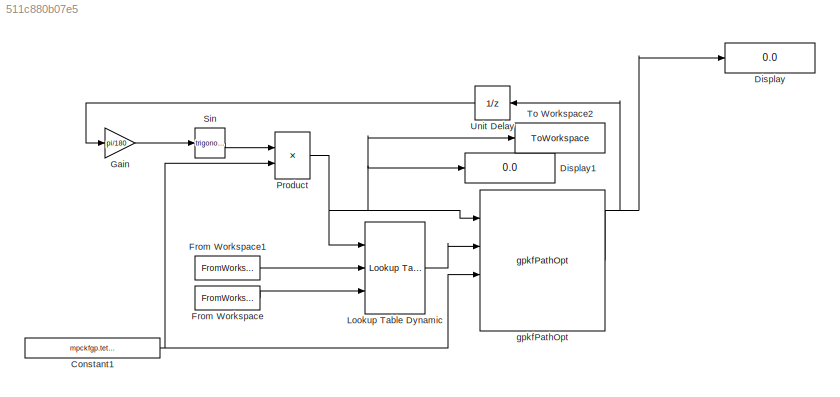
MODEL slx_511c880b07e5
KIND model
CONFIG AbsTol = auto
CONFIG EnableMultiTasking = off
CONFIG FixedStep = hiLvlCtrl.kfgpTimeStep*60/2
CONFIG MaxStep = auto
CONFIG MinStep = auto
CONFIG RelTol = 1e-3
CONFIG SampleTimeConstraint = Unconstrained
CONFIG SolverName = FixedStepAuto
CONFIG StartTime = 0.0
CONFIG StopTime = algFinTime*60
BLOCK [Constant] Constant1
  Value = mpckfgp.tetherLength
BLOCK [Display] Display
  Decimation = 1
  Ports = [1]
BLOCK [Display] Display1
  Decimation = 1
  Ports = [1]
BLOCK [FromWorkspace] From Workspace
  VariableName = synFlow
BLOCK [FromWorkspace] From Workspace1
  VariableName = synAlt
BLOCK [Gain] Gain
  Gain = pi/180
BLOCK [Reference] Lookup Table Dynamic  REF=simulink/Lookup
Tables/Lookup
Table
Dynamic
  Ports = [3, 1]
  SourceBlock = simulink/Lookup\nTables/Lookup\nTable\nDynamic
  SourceProductBaseCode = SL
  SourceType = Lookup Table Dynamic
BLOCK [Product] Product
  Ports = [2, 1]
BLOCK [Trigonometry] Sin
  Ports = [1, 1]
BLOCK [ToWorkspace] To Workspace2
  FixptAsFi = on
  MaxDataPoints = inf
  Ports = [1]
  SampleTime = -1
  SaveFormat = Timeseries
  VariableName = optAlts
BLOCK [UnitDelay] Unit Delay
  HasFrameUpgradeWarning = on
  InitialCondition = hiLvlCtrl.initVals
  NameLocation = top
  SampleTime = -1
BLOCK [Reference] gpkfPathOpt  REF=gpkfPathOpt_cl/gpkfPathOpt
  Ports = [4, 1]
  SourceBlock = gpkfPathOpt_cl/gpkfPathOpt
NET Constant1:1 -> Product:2, gpkfPathOpt:3
LINE From Workspace1:1 -> Lookup Table Dynamic:2
LINE From Workspace:1 -> Lookup Table Dynamic:3
LINE Gain:1 -> Sin:1
LINE Lookup Table Dynamic:1 -> gpkfPathOpt:2
NET Product:1 -> Display1:1, Lookup Table Dynamic:1, To Workspace2:1, gpkfPathOpt:1
LINE Sin:1 -> Product:1
LINE Unit Delay:1 -> Gain:1
NET gpkfPathOpt:1 -> Display:1, Unit Delay:1
note: NET lines group one-source signal fan-out (src -> all destinations, sorted); 1:1 wires keep LINE
